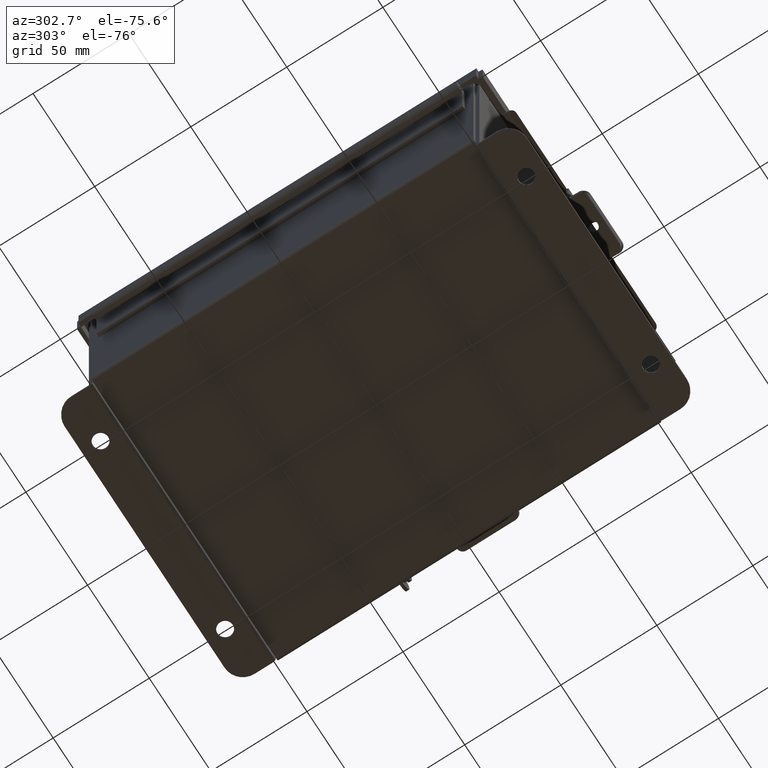
[diagram: clean part render]
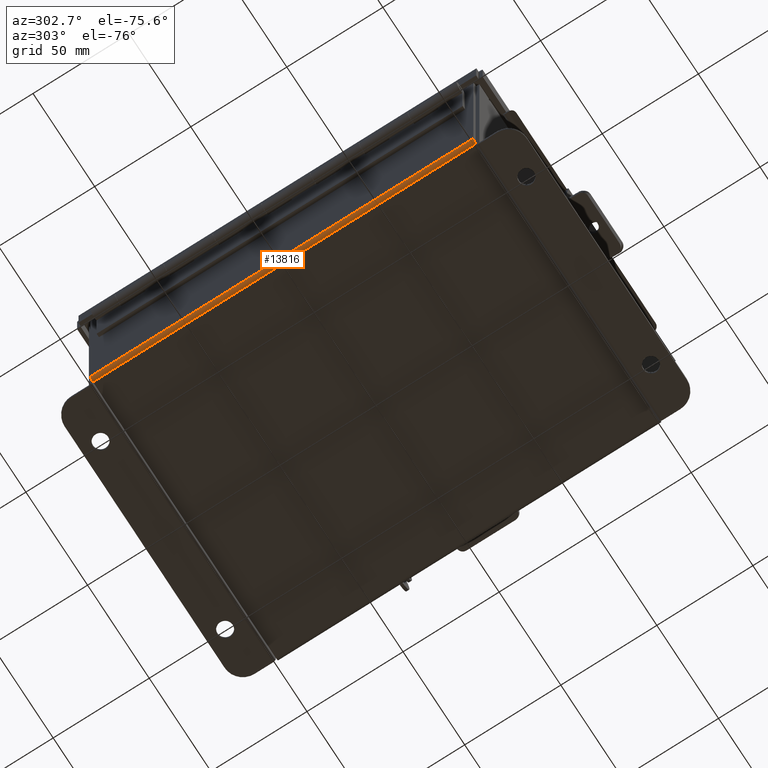
[diagram: same view with one face highlighted and labeled with its STEP entity id]
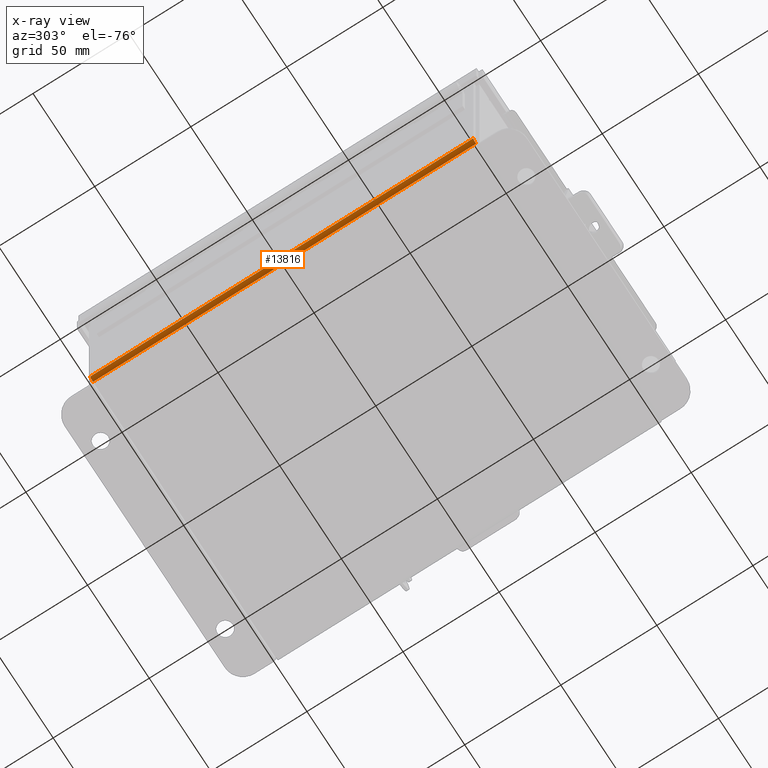
[diagram: x-ray of the same camera — body ghosted, the highlighted face saturated]
A machine part, auxiliary view. The second image highlights one B-rep face of the part: STEP entity #13816.
The next image is the same camera in x-ray: the body ghosted, the highlighted face saturated — about 0% of this face is hidden behind the body in this view.
In plain terms, the highlighted cylindrical surface (edge-blend (fillet) strip) has radius 2.2276 mm, axis along (0, -1, 0).
Its self-contained STEP definition (entity closure, byte-faithful):
#17 = CARTESIAN_POINT ( 'NONE',  ( -2.912299999999999200, 3.925300000000000500, -0.07470000000000000300 ) ) ;
#107 = ORIENTED_EDGE ( 'NONE', *, *, #7838, .F. ) ;
#248 = VERTEX_POINT ( 'NONE', #9582 ) ;
#352 = CARTESIAN_POINT ( 'NONE',  ( -2.912299999999999200, -3.925299999999999100, 0.01300000000000074700 ) ) ;
#688 = DIRECTION ( 'NONE',  ( 2.468776669828532900E-031, 1.000000000000000000, -6.959590333641414100E-017 ) ) ;
#1137 = CYLINDRICAL_SURFACE ( 'NONE', #13045, 0.08770000000000026400 ) ;
#1386 = CARTESIAN_POINT ( 'NONE',  ( -2.999999999999999600, -3.925299999999999100, 0.01300000000000039000 ) ) ;
#1498 = FACE_OUTER_BOUND ( 'NONE', #13537, .T. ) ;
#1591 = EDGE_CURVE ( 'NONE', #248, #10130, #4308, .T. ) ;
#1828 = AXIS2_PLACEMENT_3D ( 'NONE', #12636, #5516, #13837 ) ;
#2793 = VECTOR ( 'NONE', #688, 39.37007874015748100 ) ;
#2796 = DIRECTION ( 'NONE',  ( 0.0000000000000000000, -1.000000000000000000, 8.208677865577646300E-017 ) ) ;
#3390 = EDGE_CURVE ( 'NONE', #12824, #248, #5094, .T. ) ;
#3891 = DIRECTION ( 'NONE',  ( -1.000000000000000000, 0.0000000000000000000, -3.553037762569317100E-015 ) ) ;
#4308 = LINE ( 'NONE', #5428, #12865 ) ;
#5094 = CIRCLE ( 'NONE', #10890, 0.08770000000000009700 ) ;
#5428 = CARTESIAN_POINT ( 'NONE',  ( -2.912299999999999200, -3.925299999999999100, -0.07469999999999935000 ) ) ;
#5516 = DIRECTION ( 'NONE',  ( -0.0000000000000000000, 1.000000000000000000, -8.208677865577646300E-017 ) ) ;
#5957 = LINE ( 'NONE', #13711, #2793 ) ;
#6763 = CARTESIAN_POINT ( 'NONE',  ( -2.912299999999999200, -3.925299999999999100, 0.01300000000000074700 ) ) ;
#7838 = EDGE_CURVE ( 'NONE', #10130, #12438, #14149, .T. ) ;
#8522 = ORIENTED_EDGE ( 'NONE', *, *, #8526, .T. ) ;
#8526 = EDGE_CURVE ( 'NONE', #12824, #12438, #5957, .T. ) ;
#9097 = ORIENTED_EDGE ( 'NONE', *, *, #1591, .F. ) ;
#9582 = CARTESIAN_POINT ( 'NONE',  ( -2.912299999999999200, -3.925299999999999100, -0.07469999999999935000 ) ) ;
#10130 = VERTEX_POINT ( 'NONE', #17 ) ;
#10862 = ORIENTED_EDGE ( 'NONE', *, *, #3390, .F. ) ;
#10890 = AXIS2_PLACEMENT_3D ( 'NONE', #6763, #2796, #14984 ) ;
#11015 = DIRECTION ( 'NONE',  ( 0.0000000000000000000, -1.000000000000000000, 8.208677865577646300E-017 ) ) ;
#11483 = DIRECTION ( 'NONE',  ( -0.0000000000000000000, 1.000000000000000000, -8.208677865577646300E-017 ) ) ;
#12438 = VERTEX_POINT ( 'NONE', #14894 ) ;
#12636 = CARTESIAN_POINT ( 'NONE',  ( -2.912299999999999200, 3.925300000000000500, 0.01300000000000009800 ) ) ;
#12824 = VERTEX_POINT ( 'NONE', #1386 ) ;
#12865 = VECTOR ( 'NONE', #11483, 39.37007874015748100 ) ;
#13045 = AXIS2_PLACEMENT_3D ( 'NONE', #352, #11015, #3891 ) ;
#13537 = EDGE_LOOP ( 'NONE', ( #9097, #10862, #8522, #107 ) ) ;
#13711 = CARTESIAN_POINT ( 'NONE',  ( -2.999999999999999600, 3.925300000000000500, 0.01299999999999984300 ) ) ;
#13816 = ADVANCED_FACE ( 'NONE', ( #1498 ), #1137, .T. ) ;
#13837 = DIRECTION ( 'NONE',  ( 0.0000000000000000000, 0.0000000000000000000, -1.000000000000000000 ) ) ;
#14149 = CIRCLE ( 'NONE', #1828, 0.08770000000000009700 ) ;
#14894 = CARTESIAN_POINT ( 'NONE',  ( -2.999999999999999600, 3.925300000000000500, 0.01299999999999979100 ) ) ;
#14984 = DIRECTION ( 'NONE',  ( 0.0000000000000000000, 0.0000000000000000000, -1.000000000000000000 ) ) ;